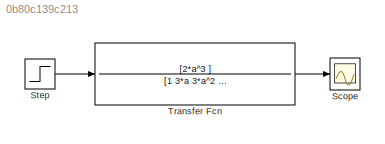
MODEL slx_0b80c139c213
KIND model
BLOCK [Scope] Scope
  Floating = off
  NumInputPorts = 1
  Ports = [1]
  SampleTime = 0
  SaveToWorkspace = on
  ShowLegends = off
  ZoomMode = xonly
BLOCK [Step] Step
  SampleTime = 0
BLOCK [TransferFcn] Transfer Fcn
  AttributesFormatString = %<Name>\n%<UserDataPersistent>\n%<AlgorithmParameters>
  Denominator = [1 3*a 3*a^2 a^3 ]
  Numerator = [2*a^3 ]
LINE Step:1 -> Transfer Fcn:1
LINE Transfer Fcn:1 -> Scope:1
